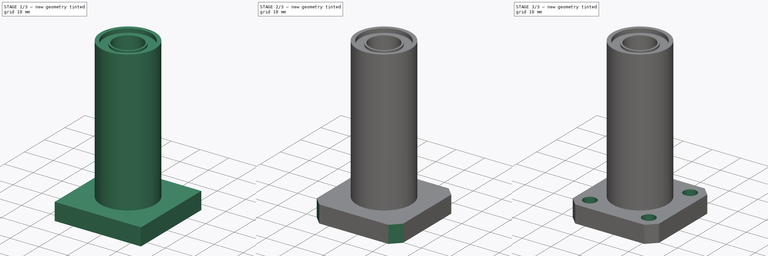
[diagram: build sequence overview — one tinted view per stage of 3, left to right]
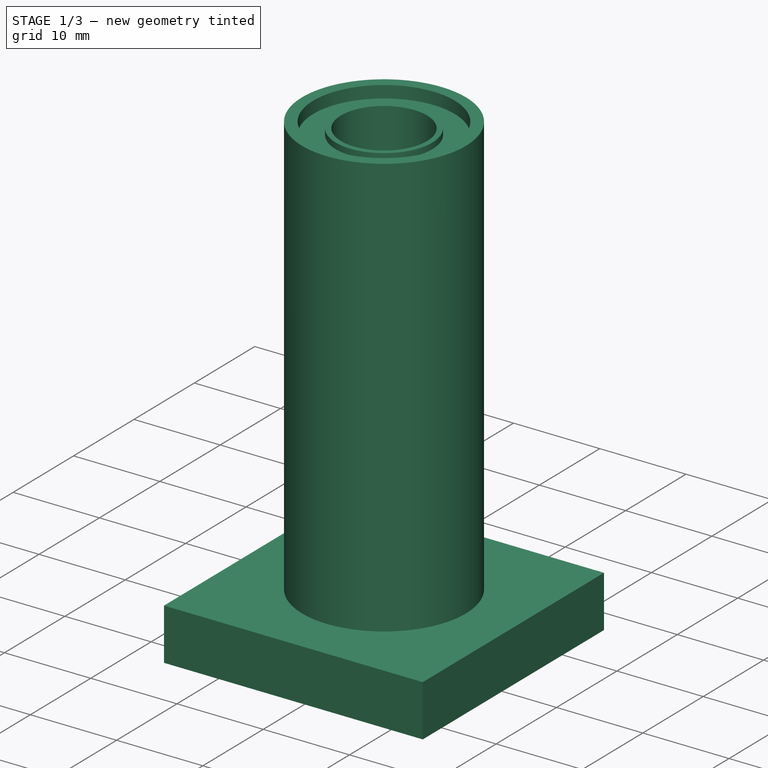
[diagram: stage 1 of 3 — iso view after this stage's code; geometry added in this stage tinted green]
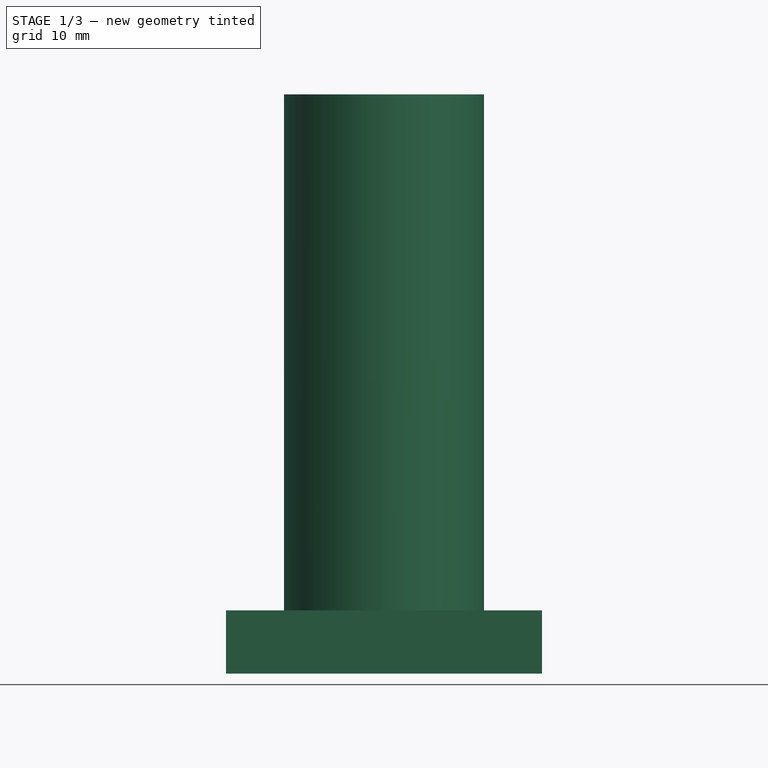
[diagram: stage 1 of 3 — front view after this stage's code; geometry added in this stage tinted green]
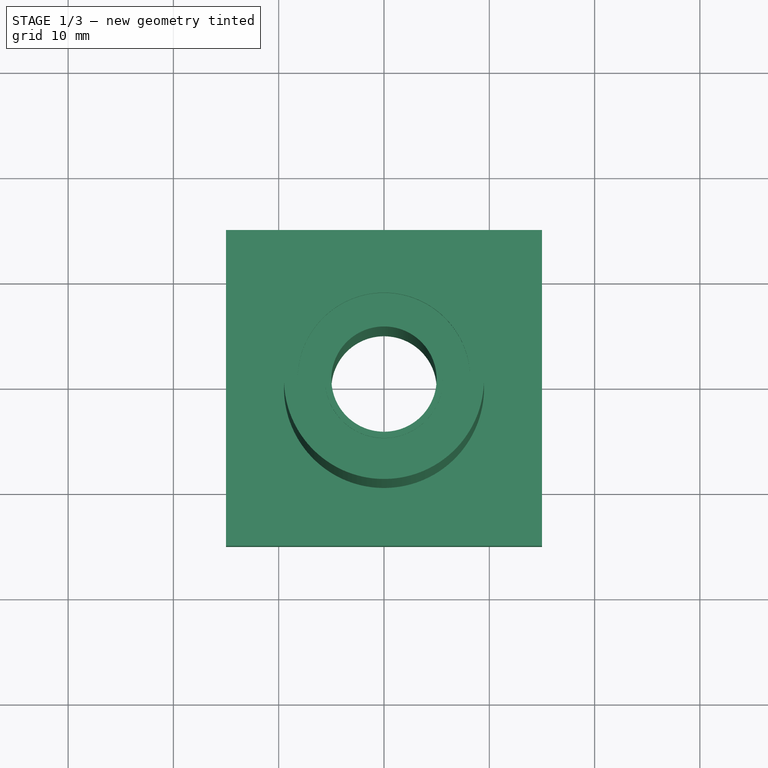
[diagram: stage 1 of 3 — top view after this stage's code; geometry added in this stage tinted green]
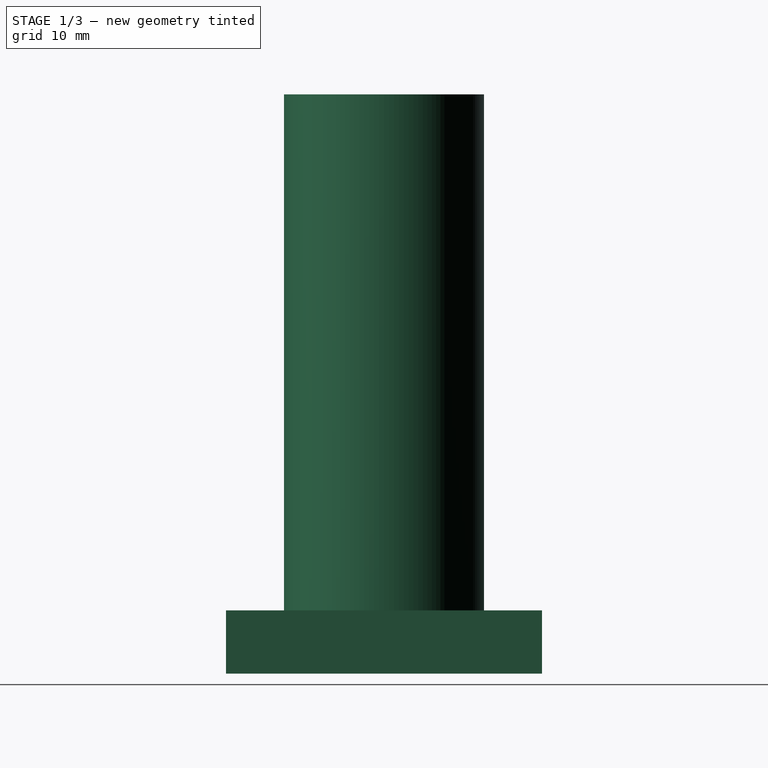
[diagram: stage 1 of 3 — right view after this stage's code; geometry added in this stage tinted green]
FCSTD DOCUMENT  (FreeCAD 0.16R6706 (Git))
Label: lmk10luu
Comment: Modified LM8UU to LM10UU specs
License: CC-BY 3.0
LicenseURL: http://creativecommons.org/licenses/by/3.0/
objects: Sketcher::SketchObject×4, PartDesign::Pocket×2, PartDesign::Revolution×1, PartDesign::Pad×1, PartDesign::Chamfer×1, Part::Feature×1
note: 14 computed .brp shape members not serialized (recipe doc carries the construction recipe); baked Part::Feature solids carry a one-line shape summary decoded from their .brp

FEATURE [Sketcher::SketchObject] Sketch  label="lm10uu-cross-section"
  Placement = pos=(0,0,0) rot=(1,0,0;1.5708rad)
  sketch-geometry (12):
    g0: LineSegment StartX=9.5 StartY=-27.5 StartZ=0 EndX=9.5 EndY=27.5 EndZ=0
    g1: LineSegment StartX=9.5 StartY=27.5 StartZ=0 EndX=8.2 EndY=27.5 EndZ=0
    g2: LineSegment StartX=8.2 StartY=27.5 StartZ=0 EndX=8.2 EndY=26.1 EndZ=0
    g3: LineSegment StartX=8.2 StartY=26.1 StartZ=0 EndX=5.6 EndY=26.1 EndZ=0
    g4: LineSegment StartX=5.6 StartY=26.1 StartZ=0 EndX=5.6 EndY=26.8 EndZ=0
    g5: LineSegment StartX=5.6 StartY=26.8 StartZ=0 EndX=5 EndY=26.8 EndZ=0
    g6: LineSegment StartX=5 StartY=26.8 StartZ=0 EndX=5 EndY=-26.8 EndZ=0
    g7: LineSegment StartX=9.5 StartY=-27.5 StartZ=0 EndX=8.2 EndY=-27.5 EndZ=0
    g8: LineSegment StartX=8.2 StartY=-27.5 StartZ=0 EndX=8.2 EndY=-26.1 EndZ=0
    g9: LineSegment StartX=8.2 StartY=-26.1 StartZ=0 EndX=5.6 EndY=-26.1 EndZ=0
    g10: LineSegment StartX=5.6 StartY=-26.1 StartZ=0 EndX=5.6 EndY=-26.8 EndZ=0
    g11: LineSegment StartX=5.6 StartY=-26.8 StartZ=0 EndX=5 EndY=-26.8 EndZ=0
  constraints (34):
    c: Coincident(g1,g2)
    c: Vertical(g2)
    c: Coincident(g2,g3)
    c: Horizontal(g3)
    c: Coincident(g3,g4)
    c: Vertical(g4)
    c: Coincident(g4,g5)
    c: Horizontal(g5)
    c: Coincident(g5,g6)
    c: Vertical(g6)
    c: Horizontal(g1)
    c: Symmetric(g0,g1,g-1)
    c: DistanceY(g1,g0) = -55
    c: DistanceX(g-1,g1) = 9.5
    c: DistanceX(g-1,g5) = 5
    c: DistanceX(g1) = -1.3
    c: DistanceX(g5) = -0.6
    c: DistanceY(g2) = -1.4
    c: DistanceY(g4) = 0.7
    c: Coincident(g0,g7)
    c: Horizontal(g7)
    c: Coincident(g7,g8)
    c: Vertical(g8)
    c: Coincident(g8,g9)
    c: Horizontal(g9)
    c: Coincident(g9,g10)
    c: Vertical(g10)
    c: Coincident(g10,g11)
    c: Horizontal(g11)
    c: Coincident(g6,g11)
    c: Symmetric(g6,g5,g-1)
    c: Symmetric(g8,g2,g-1)
    c: Symmetric(g9,g3,g-1)
    c: Coincident(g0,g1)
FEATURE [PartDesign::Revolution] Revolution  label="LM10Luu"
  Angle = 360
  Axis = (0,0,1)
  Base = (0,0,0)
  Placement = pos=(0,0,0) rot=(1,0,0;1.5708rad)
  ReferenceAxis = -> Sketch [V_Axis]
  Sketch = -> Sketch
FEATURE [Sketcher::SketchObject] Sketch001
  Placement = pos=(0,0,-27.5) rot=(1,0,0;3.14159rad)
  Support = -> Revolution [Face12]
  sketch-geometry (5):
    g0: LineSegment StartX=-15 StartY=-15 StartZ=0 EndX=15 EndY=-15 EndZ=0
    g1: LineSegment StartX=15 StartY=-15 StartZ=0 EndX=15 EndY=15 EndZ=0
    g2: LineSegment StartX=15 StartY=15 StartZ=0 EndX=-15 EndY=15 EndZ=0
    g3: LineSegment StartX=-15 StartY=15 StartZ=0 EndX=-15 EndY=-15 EndZ=0
    g4: Circle CenterX=0 CenterY=0 CenterZ=0 NormalX=0 NormalY=0 NormalZ=1 Radius=9.4
  constraints (13):
    c: Coincident(g0,g1)
    c: Coincident(g1,g2)
    c: Coincident(g2,g3)
    c: Coincident(g3,g0)
    c: Horizontal(g0)
    c: Horizontal(g2)
    c: Vertical(g1)
    c: Vertical(g3)
    c: Symmetric(g2,g0,g-1)
    c: Equal(g1,g2)
    c: Coincident(g4,g-1)
    c: Radius(g4) = 9.4
    c: DistanceX(g2,g2) = 30
FEATURE [PartDesign::Pad] Pad  label="flange_body"
  Length = 6
  Length2 = 100
  Placement = pos=(0,0,0) rot=(1,0,0;1.5708rad)
  Reversed = true
  Sketch = -> Sketch001
  Type = 0
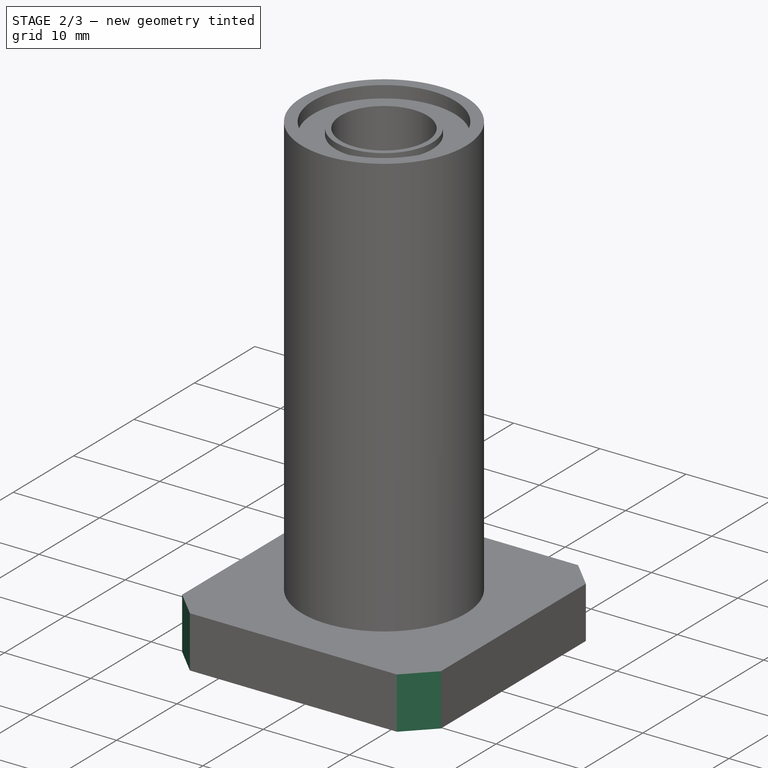
[diagram: stage 2 of 3 — iso view after this stage's code; geometry added in this stage tinted green]
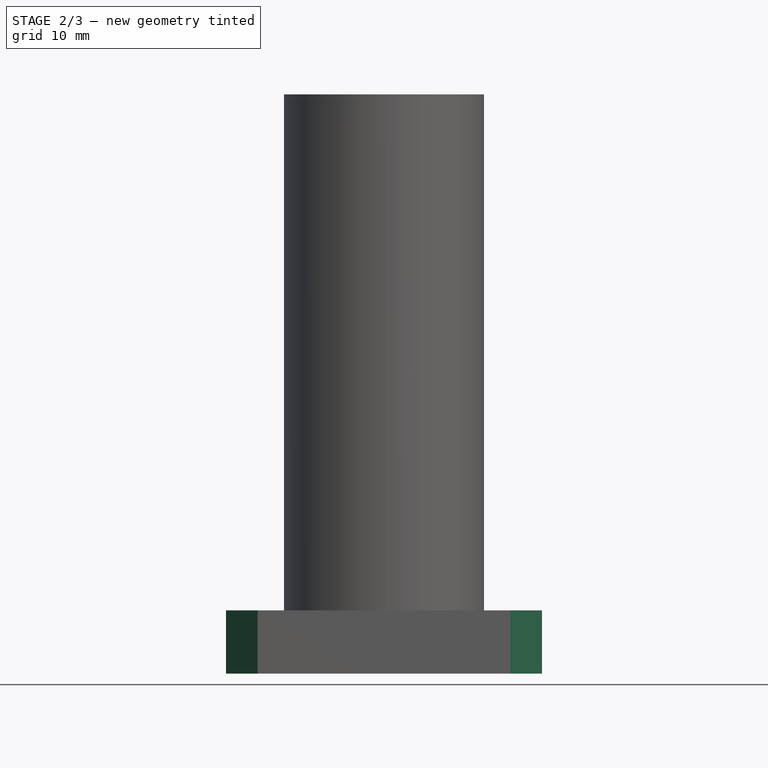
[diagram: stage 2 of 3 — front view after this stage's code; geometry added in this stage tinted green]
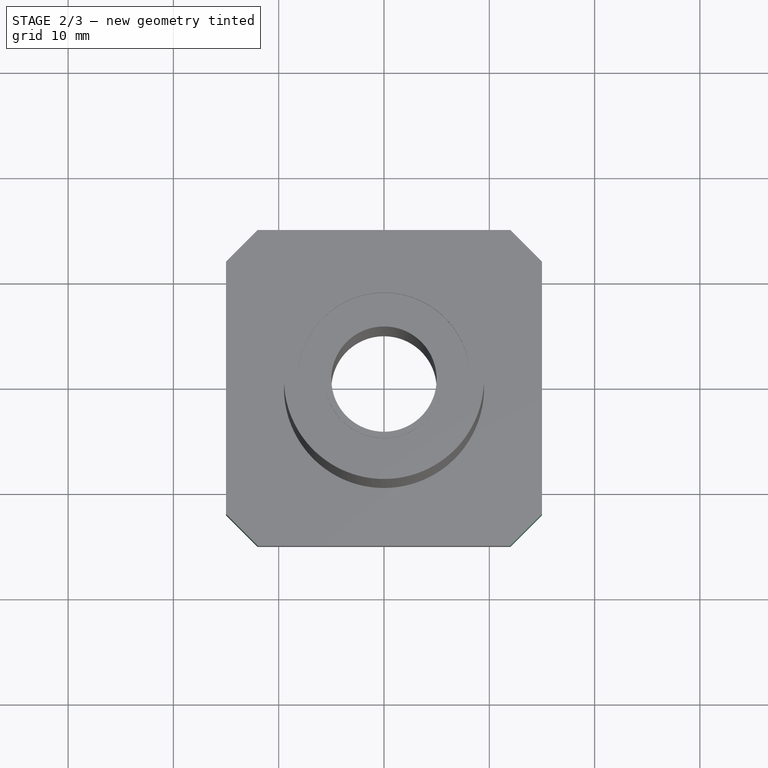
[diagram: stage 2 of 3 — top view after this stage's code; geometry added in this stage tinted green]
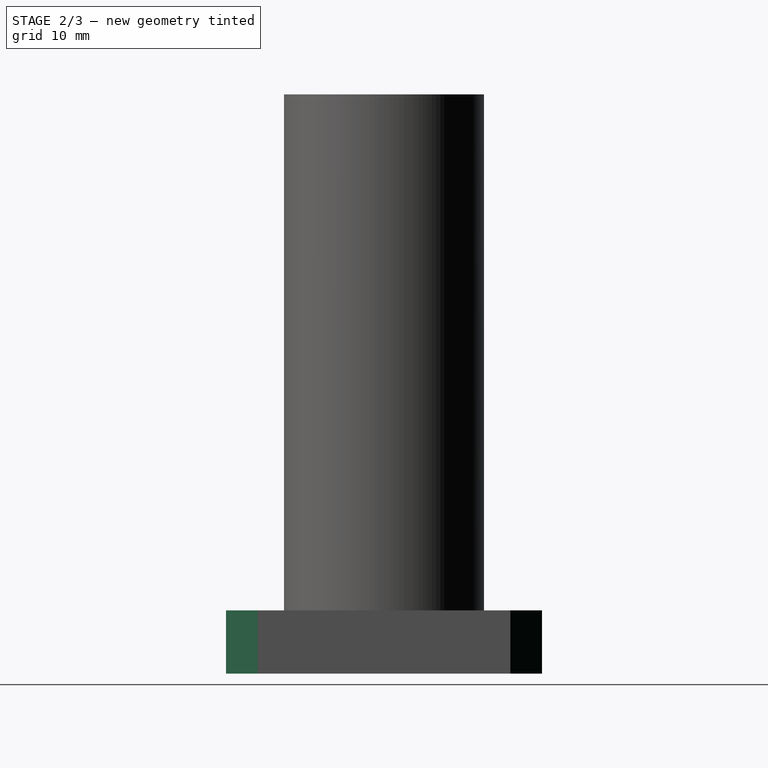
[diagram: stage 2 of 3 — right view after this stage's code; geometry added in this stage tinted green]
FEATURE [PartDesign::Chamfer] Chamfer  label="corner_chamfers"
  Base = -> Pad [Edge17,Edge15,Edge13,Edge12]
  Placement = pos=(0,0,0) rot=(1,0,0;1.5708rad)
  Size = 3
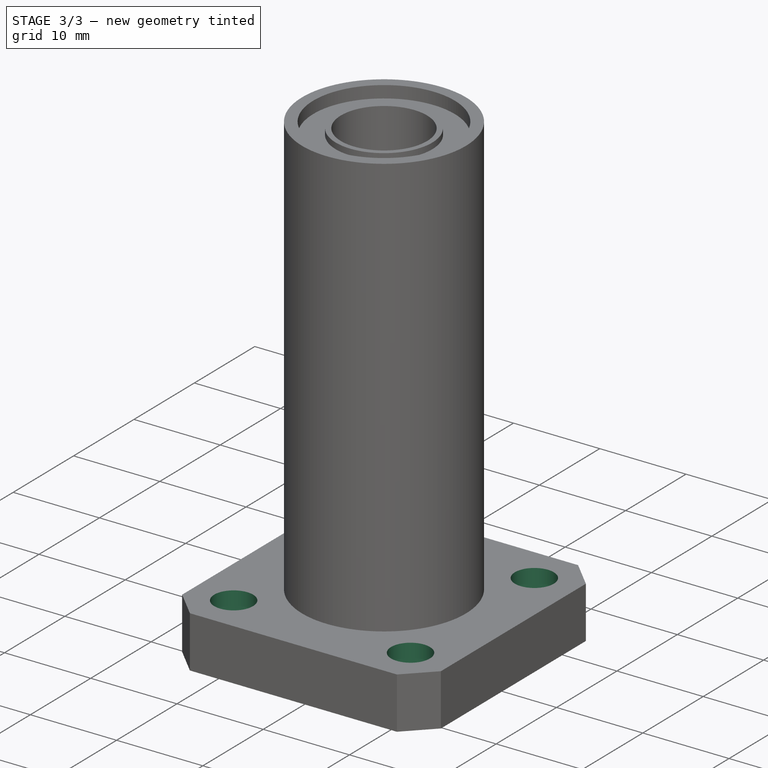
[diagram: stage 3 of 3 — iso view after this stage's code; geometry added in this stage tinted green]
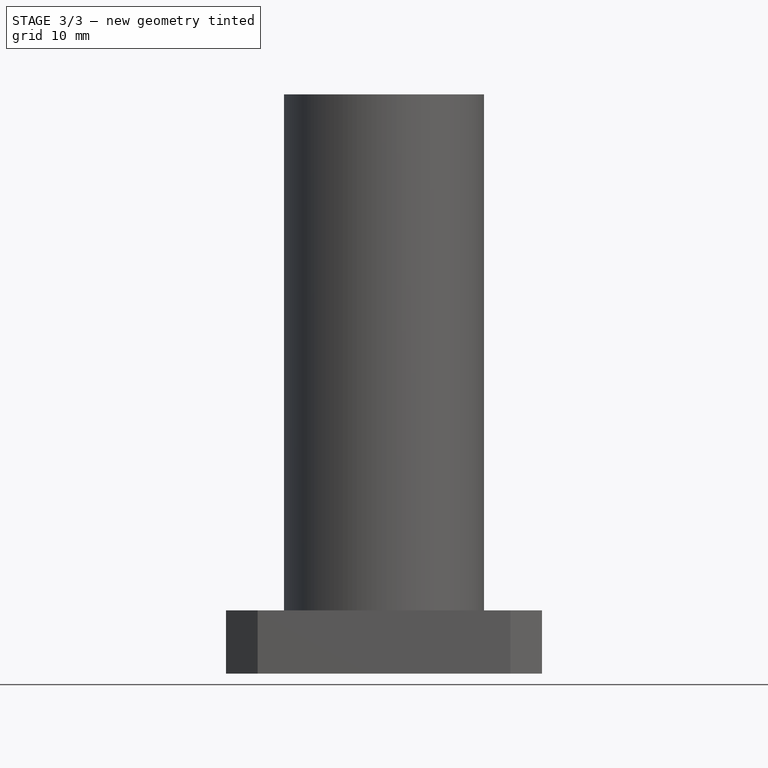
[diagram: stage 3 of 3 — front view after this stage's code; geometry added in this stage tinted green]
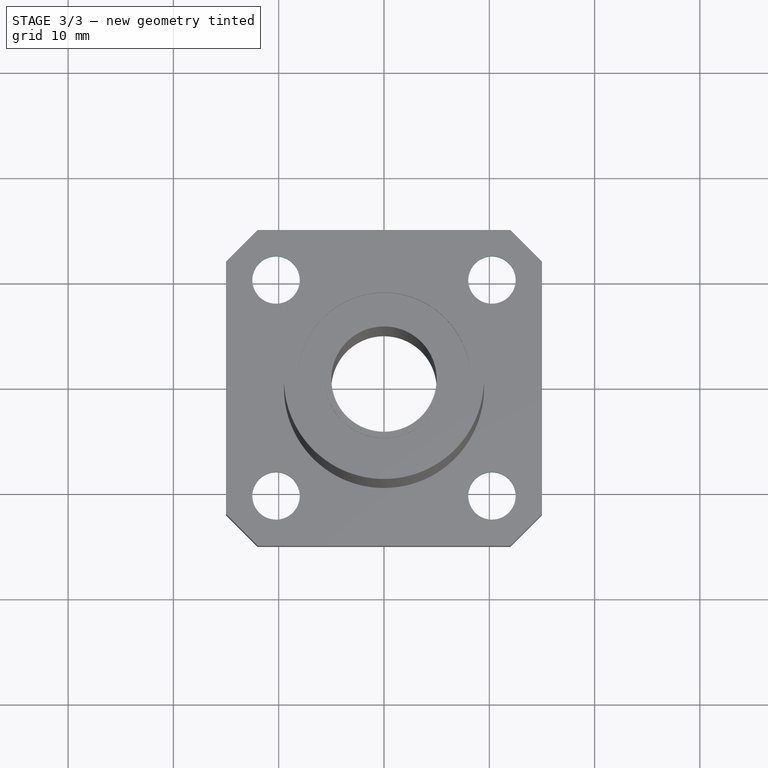
[diagram: stage 3 of 3 — top view after this stage's code; geometry added in this stage tinted green]
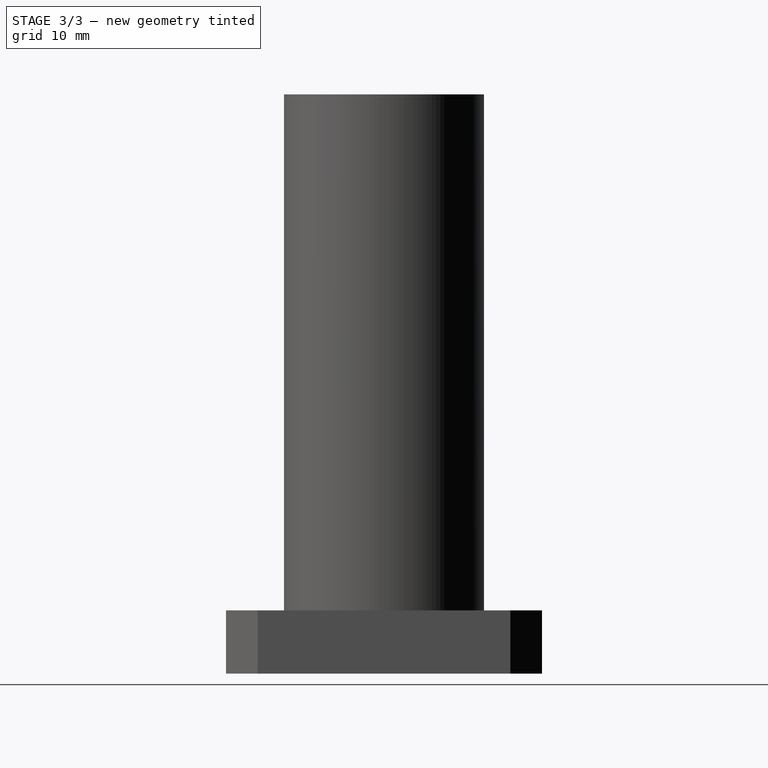
[diagram: stage 3 of 3 — right view after this stage's code; geometry added in this stage tinted green]
FEATURE [Sketcher::SketchObject] Sketch002
  Placement = pos=(0,0,-27.5) rot=(1,0,0;3.14159rad)
  Support = -> Chamfer [Face11]
  sketch-geometry (9):
    g0: Circle [constr] CenterX=0 CenterY=0 CenterZ=0 NormalX=0 NormalY=0 NormalZ=1 Radius=14.5
    g1: LineSegment [constr] StartX=-10.253 StartY=10.253 StartZ=0 EndX=10.253 EndY=10.253 EndZ=0
    g2: LineSegment [constr] StartX=10.253 StartY=10.253 StartZ=0 EndX=10.253 EndY=-10.253 EndZ=0
    g3: LineSegment [constr] StartX=10.253 StartY=-10.253 StartZ=0 EndX=-10.253 EndY=-10.253 EndZ=0
    g4: LineSegment [constr] StartX=-10.253 StartY=-10.253 StartZ=0 EndX=-10.253 EndY=10.253 EndZ=0
    g5: Circle CenterX=-10.253 CenterY=10.253 CenterZ=0 NormalX=0 NormalY=0 NormalZ=1 Radius=2.25
    g6: Circle CenterX=10.253 CenterY=10.253 CenterZ=0 NormalX=0 NormalY=0 NormalZ=1 Radius=2.25
    g7: Circle CenterX=10.253 CenterY=-10.253 CenterZ=0 NormalX=0 NormalY=0 NormalZ=1 Radius=2.25
    g8: Circle CenterX=-10.253 CenterY=-10.253 CenterZ=0 NormalX=0 NormalY=0 NormalZ=1 Radius=2.25
  constraints (22):
    c: Coincident(g0,g-1)
    c: Coincident(g1,g2)
    c: Coincident(g2,g3)
    c: Coincident(g3,g4)
    c: Coincident(g4,g1)
    c: Horizontal(g1)
    c: Horizontal(g3)
    c: Vertical(g2)
    c: Vertical(g4)
    c: PointOnObject(g1,g0)
    c: PointOnObject(g2,g0)
    c: Radius(g0) = 14.5
    c: Symmetric(g1,g3,g-1)
    c: Equal(g1,g4)
    c: Coincident(g5,g1)
    c: Coincident(g6,g1)
    c: Coincident(g7,g2)
    c: Coincident(g8,g3)
    c: Equal(g5,g8)
    c: Equal(g8,g7)
    c: Equal(g7,g6)
    c: Radius(g6) = 2.25
FEATURE [PartDesign::Pocket] Pocket  label="bolt_holes"
  Length = 100
  Placement = pos=(0,0,0) rot=(1,0,0;1.5708rad)
  Sketch = -> Sketch002
  Type = 0
FEATURE [Sketcher::SketchObject] Sketch003
  Placement = pos=(0,0,-27.5) rot=(1,0,0;3.14159rad)
  Support = -> Pocket [Face15]
  sketch-geometry (9):
    g0: Circle [constr] CenterX=0 CenterY=0 CenterZ=0 NormalX=0 NormalY=0 NormalZ=1 Radius=14.5
    g1: LineSegment [constr] StartX=-10.253 StartY=10.253 StartZ=0 EndX=10.253 EndY=10.253 EndZ=0
    g2: LineSegment [constr] StartX=10.253 StartY=10.253 StartZ=0 EndX=10.253 EndY=-10.253 EndZ=0
    g3: LineSegment [constr] StartX=10.253 StartY=-10.253 StartZ=0 EndX=-10.253 EndY=-10.253 EndZ=0
    g4: LineSegment [constr] StartX=-10.253 StartY=-10.253 StartZ=0 EndX=-10.253 EndY=10.253 EndZ=0
    g5: Circle CenterX=-10.253 CenterY=10.253 CenterZ=0 NormalX=0 NormalY=0 NormalZ=1 Radius=4
    g6: Circle CenterX=10.253 CenterY=10.253 CenterZ=0 NormalX=0 NormalY=0 NormalZ=1 Radius=4
    g7: Circle CenterX=10.253 CenterY=-10.253 CenterZ=0 NormalX=0 NormalY=0 NormalZ=1 Radius=4
    g8: Circle CenterX=-10.253 CenterY=-10.253 CenterZ=0 NormalX=0 NormalY=0 NormalZ=1 Radius=4
  constraints (22):
    c: Coincident(g0,g-1)
    c: Coincident(g1,g2)
    c: Coincident(g2,g3)
    c: Coincident(g3,g4)
    c: Coincident(g4,g1)
    c: Horizontal(g1)
    c: Horizontal(g3)
    c: Vertical(g2)
    c: Vertical(g4)
    c: PointOnObject(g1,g0)
    c: PointOnObject(g2,g0)
    c: Symmetric(g1,g3,g-1)
    c: Equal(g1,g4)
    c: Radius(g0) = 14.5
    c: Coincident(g5,g1)
    c: Coincident(g6,g1)
    c: Coincident(g7,g2)
    c: Coincident(g8,g3)
    c: Equal(g5,g8)
    c: Equal(g8,g6)
    c: Equal(g6,g7)
    c: Radius(g6) = 4
FEATURE [PartDesign::Pocket] Pocket001  label="bolt_head_holes"
  Length = 4.4
  Placement = pos=(0,0,0) rot=(1,0,0;1.5708rad)
  Sketch = -> Sketch003
  Type = 0
FEATURE [Part::Feature] Pocket001001001  label="lmk10luu"
  shape: bbox 30 x 30 x 55 mm, 33 faces (baked)
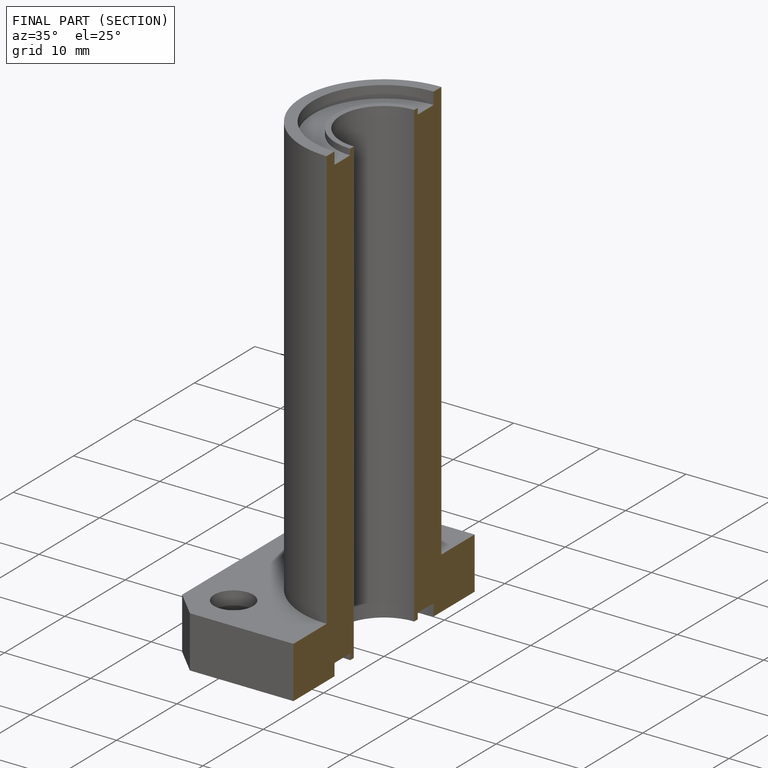
[diagram: finished part — half-section view (interior)]
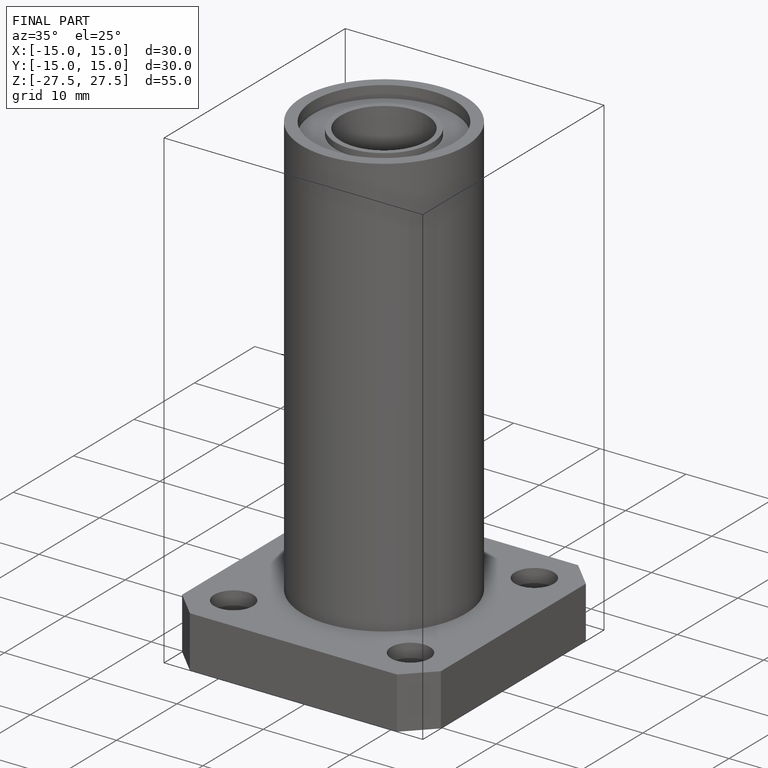
[diagram: finished part — iso view with bounding-box wireframe]
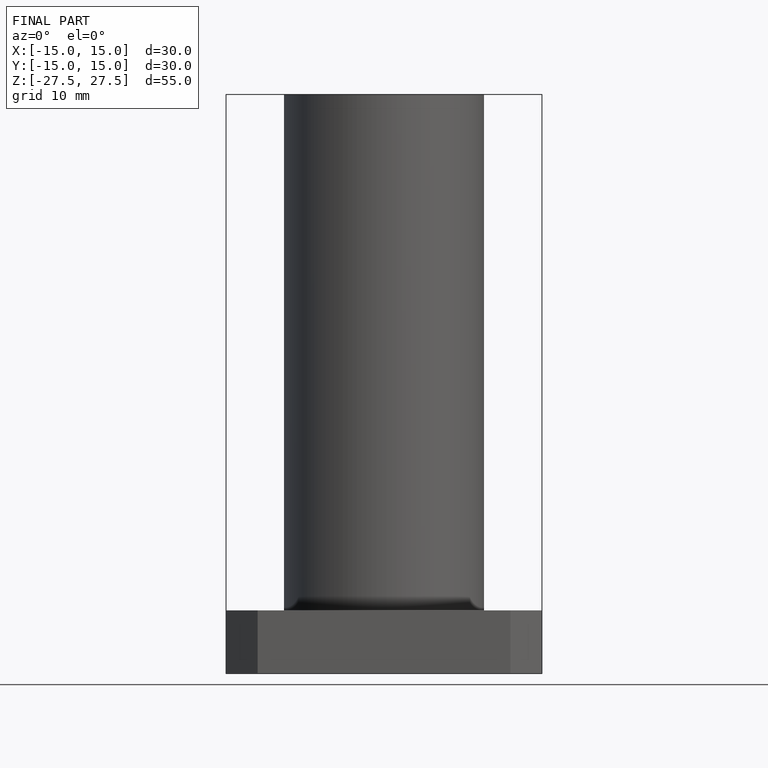
[diagram: finished part — front view with bounding-box wireframe]
